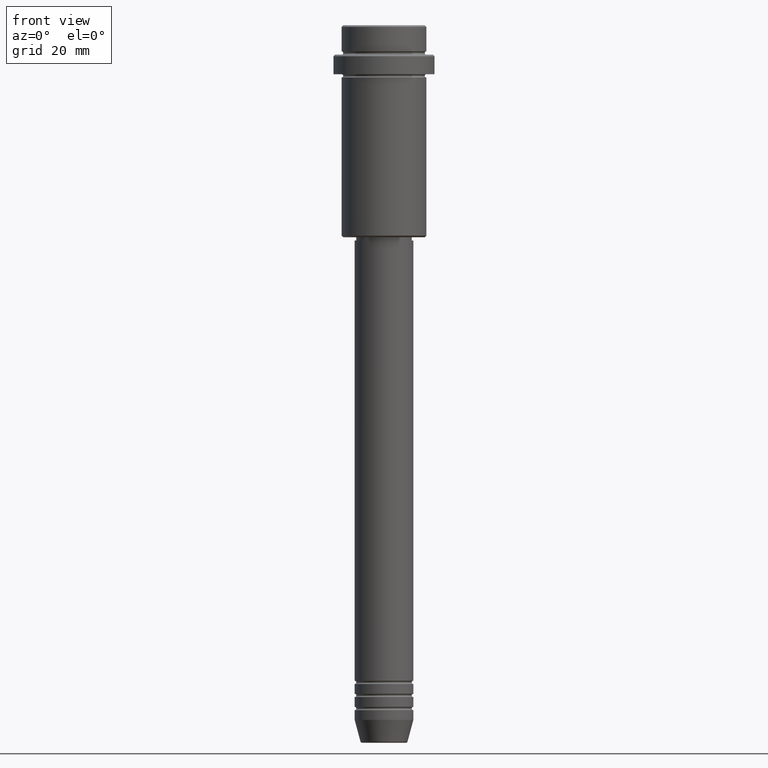
[diagram: clean part render]
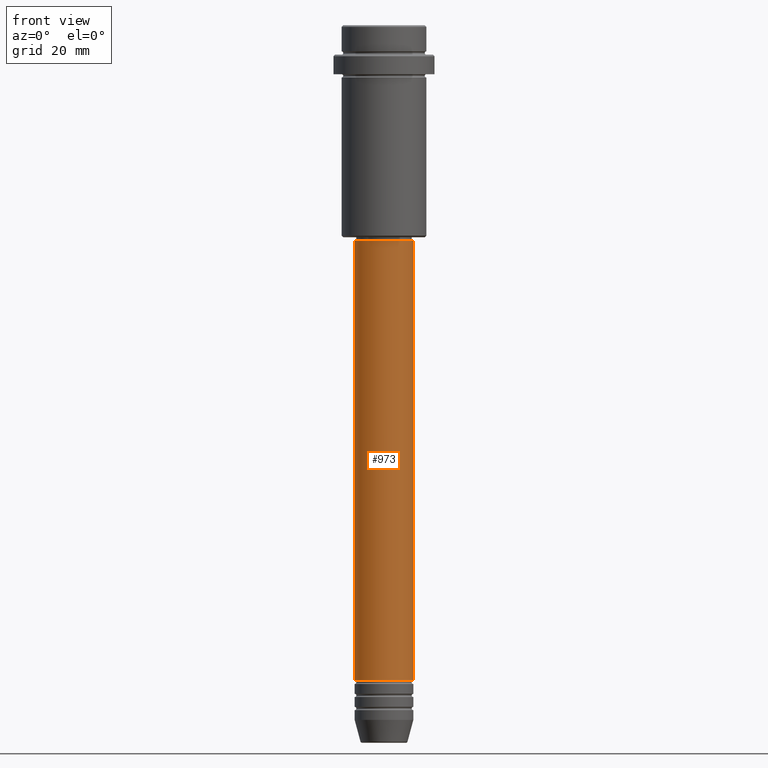
[diagram: same view with one face highlighted and labeled with its STEP entity id]
A machine part, front view. The second image highlights one B-rep face of the part: STEP entity #973.
In plain terms, the highlighted cylindrical surface (edge-blend (fillet) strip) has radius 9 mm, axis along (-0, -0, 1).
Its self-contained STEP definition (entity closure, byte-faithful):
#1 = ORIENTED_EDGE ( 'NONE', *, *, #220, .T. ) ;
#85 = VERTEX_POINT ( 'NONE', #841 ) ;
#86 = DIRECTION ( 'NONE',  ( -0.000000000000000000, -0.000000000000000000, 1.000000000000000000 ) ) ;
#96 = EDGE_CURVE ( 'NONE', #633, #1158, #1220, .T. ) ;
#220 = EDGE_CURVE ( 'NONE', #1158, #85, #1100, .T. ) ;
#284 = CARTESIAN_POINT ( 'NONE',  ( 0.000000000000000000, 0.000000000000000000, -65.99999999999997158 ) ) ;
#320 = ORIENTED_EDGE ( 'NONE', *, *, #96, .T. ) ;
#334 = ORIENTED_EDGE ( 'NONE', *, *, #414, .F. ) ;
#352 = LINE ( 'NONE', #697, #1359 ) ;
#380 = DIRECTION ( 'NONE',  ( -0.000000000000000000, -0.000000000000000000, 1.000000000000000000 ) ) ;
#414 = EDGE_CURVE ( 'NONE', #1048, #85, #1357, .T. ) ;
#460 = CARTESIAN_POINT ( 'NONE',  ( 9.000000000000000000, 0.000000000000000000, -200.9999999999998579 ) ) ;
#489 = FACE_OUTER_BOUND ( 'NONE', #675, .T. ) ;
#524 = CARTESIAN_POINT ( 'NONE',  ( -9.000000000000001776, 1.102182119232617911E-15, -65.99999999999997158 ) ) ;
#536 = DIRECTION ( 'NONE',  ( 1.000000000000000000, 0.000000000000000000, 0.000000000000000000 ) ) ;
#601 = DIRECTION ( 'NONE',  ( -0.000000000000000000, -0.000000000000000000, 1.000000000000000000 ) ) ;
#633 = VERTEX_POINT ( 'NONE', #978 ) ;
#668 = AXIS2_PLACEMENT_3D ( 'NONE', #284, #601, #702 ) ;
#675 = EDGE_LOOP ( 'NONE', ( #1388, #320, #1, #334 ) ) ;
#697 = CARTESIAN_POINT ( 'NONE',  ( -9.000000000000001776, 1.102182119232617911E-15, 0.000000000000000000 ) ) ;
#702 = DIRECTION ( 'NONE',  ( 1.000000000000000000, 0.000000000000000000, 0.000000000000000000 ) ) ;
#790 = DIRECTION ( 'NONE',  ( -0.000000000000000000, -0.000000000000000000, 1.000000000000000000 ) ) ;
#797 = EDGE_CURVE ( 'NONE', #633, #1048, #352, .T. ) ;
#814 = CARTESIAN_POINT ( 'NONE',  ( 0.000000000000000000, 0.000000000000000000, 0.000000000000000000 ) ) ;
#841 = CARTESIAN_POINT ( 'NONE',  ( 9.000000000000001776, 0.000000000000000000, -65.99999999999997158 ) ) ;
#927 = DIRECTION ( 'NONE',  ( 1.000000000000000000, 0.000000000000000000, 0.000000000000000000 ) ) ;
#973 = ADVANCED_FACE ( 'NONE', ( #489 ), #1367, .T. ) ;
#975 = CARTESIAN_POINT ( 'NONE',  ( 9.000000000000001776, 0.000000000000000000, 0.000000000000000000 ) ) ;
#978 = CARTESIAN_POINT ( 'NONE',  ( -9.000000000000000000, 1.102182119232617714E-15, -200.9999999999998579 ) ) ;
#1008 = AXIS2_PLACEMENT_3D ( 'NONE', #814, #380, #927 ) ;
#1048 = VERTEX_POINT ( 'NONE', #524 ) ;
#1100 = LINE ( 'NONE', #975, #1122 ) ;
#1122 = VECTOR ( 'NONE', #1412, 1000.000000000000000 ) ;
#1158 = VERTEX_POINT ( 'NONE', #460 ) ;
#1167 = AXIS2_PLACEMENT_3D ( 'NONE', #1176, #86, #536 ) ;
#1176 = CARTESIAN_POINT ( 'NONE',  ( 0.000000000000000000, 0.000000000000000000, -200.9999999999998579 ) ) ;
#1220 = CIRCLE ( 'NONE', #1167, 9.000000000000000000 ) ;
#1357 = CIRCLE ( 'NONE', #668, 9.000000000000001776 ) ;
#1359 = VECTOR ( 'NONE', #790, 1000.000000000000000 ) ;
#1367 = CYLINDRICAL_SURFACE ( 'NONE', #1008, 9.000000000000001776 ) ;
#1388 = ORIENTED_EDGE ( 'NONE', *, *, #797, .F. ) ;
#1412 = DIRECTION ( 'NONE',  ( -0.000000000000000000, -0.000000000000000000, 1.000000000000000000 ) ) ;